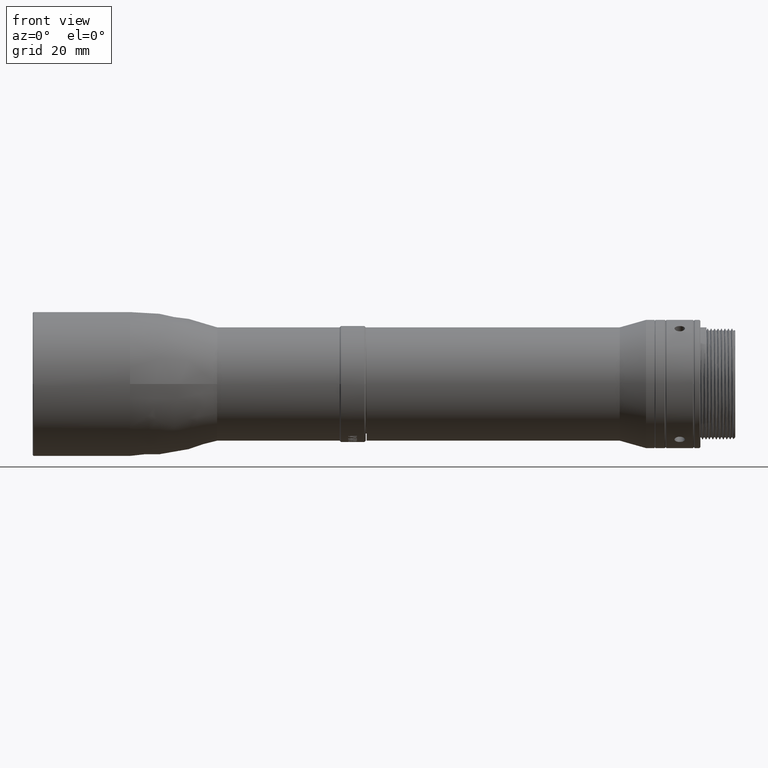
[diagram: clean part render]
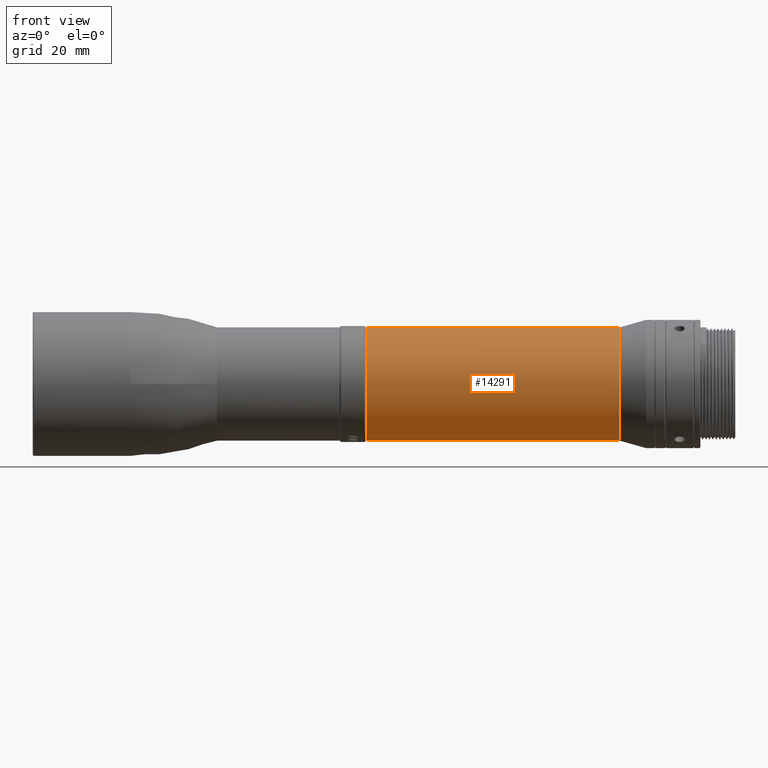
[diagram: same view with one face highlighted and labeled with its STEP entity id]
A machine part, front view. The second image highlights one B-rep face of the part: STEP entity #14291.
In plain terms, the highlighted face is a freeform B-spline surface patch.
Its self-contained STEP definition (entity closure, byte-faithful):
#617 = CARTESIAN_POINT ( 'NONE',  ( 92.39000000000000057, -2.388061258771915706E-15, -13.00000000000000178 ) ) ;
#1332 =( BOUNDED_SURFACE ( )  B_SPLINE_SURFACE ( 1, 3, ( 
 ( #12460, #20420, #2575, #6869 ),
 ( #22501, #4645, #14822, #20556 ) ),
 .UNSPECIFIED., .F., .F., .F. ) 
 B_SPLINE_SURFACE_WITH_KNOTS ( ( 2, 2 ),
 ( 4, 4 ),
 ( 0.000000000000000000, 1.000000000000000000 ),
 ( 0.000000000000000000, 1.000000000000000000 ),
 .UNSPECIFIED. ) 
 GEOMETRIC_REPRESENTATION_ITEM ( )  RATIONAL_B_SPLINE_SURFACE ( (
 ( 1.000000000000000000, 0.3333333334700690487, 0.3333333334700690487, 1.000000000000000000),
 ( 1.000000000000000000, 0.3333333334700690487, 0.3333333334700690487, 1.000000000000000000) ) ) 
 REPRESENTATION_ITEM ( '' )  SURFACE ( )  );
#2575 = CARTESIAN_POINT ( 'NONE',  ( 34.29999999999999716, -25.99999998933461143, -12.99999999999999467 ) ) ;
#2769 = LINE ( 'NONE', #15011, #22533 ) ;
#3167 = CARTESIAN_POINT ( 'NONE',  ( 34.29999999999997584, -4.977176649126339839E-09, 13.00000000000000178 ) ) ;
#4645 = CARTESIAN_POINT ( 'NONE',  ( 92.39000000000000057, -25.99999999466730216, 12.99999998933462209 ) ) ;
#5715 = EDGE_CURVE ( 'NONE', #5880, #9061, #19440, .T. ) ;
#5880 = VERTEX_POINT ( 'NONE', #9741 ) ;
#6119 = CARTESIAN_POINT ( 'NONE',  ( 34.29999999999996874, -25.99999998933461498, -12.99999999999999289 ) ) ;
#6468 = CARTESIAN_POINT ( 'NONE',  ( 92.39000000000000057, -25.99999998933461143, -12.99999999999999467 ) ) ;
#6869 = CARTESIAN_POINT ( 'NONE',  ( 34.29999999999999716, -3.184081678362554275E-15, -13.00000000000000178 ) ) ;
#8277 = CARTESIAN_POINT ( 'NONE',  ( 92.39000000000000057, -25.99999999466729506, 12.99999998933462031 ) ) ;
#8670 = CARTESIAN_POINT ( 'NONE',  ( 63.34499999999999886, -5.332689141398610227E-09, 13.00000000000000178 ) ) ;
#8734 = ORIENTED_EDGE ( 'NONE', *, *, #5715, .F. ) ;
#8835 = VECTOR ( 'NONE', #24092, 1000.000000000000000 ) ;
#8940 = LINE ( 'NONE', #8670, #8835 ) ;
#9061 = VERTEX_POINT ( 'NONE', #3167 ) ;
#9188 = EDGE_CURVE ( 'NONE', #9704, #9061, #8940, .T. ) ;
#9704 = VERTEX_POINT ( 'NONE', #11848 ) ;
#9741 = CARTESIAN_POINT ( 'NONE',  ( 34.29999999999999716, -1.556416484411564231E-10, -13.00000000000000178 ) ) ;
#10029 = CARTESIAN_POINT ( 'NONE',  ( 34.29999999999999716, -1.556416484411564231E-10, -13.00000000000000178 ) ) ;
#11694 = CARTESIAN_POINT ( 'NONE',  ( 92.39000000000000057, -2.388061258771915706E-15, -13.00000000000000178 ) ) ;
#11848 = CARTESIAN_POINT ( 'NONE',  ( 92.38999999999997215, -5.332689141398607745E-09, 12.99999999999999467 ) ) ;
#12225 = VERTEX_POINT ( 'NONE', #11694 ) ;
#12460 = CARTESIAN_POINT ( 'NONE',  ( 34.29999999999999716, -5.332689141398610227E-09, 13.00000000000000178 ) ) ;
#12966 =( BOUNDED_CURVE ( )  B_SPLINE_CURVE ( 3, ( #16115, #8277, #6468, #617 ),
 .UNSPECIFIED., .F., .T. ) 
 B_SPLINE_CURVE_WITH_KNOTS ( ( 4, 4 ),
 ( 0.000000000000000000, 1.000000000000000000 ),
 .UNSPECIFIED. ) 
 CURVE ( )  GEOMETRIC_REPRESENTATION_ITEM ( )  RATIONAL_B_SPLINE_CURVE ( ( 1.000000000000000000, 0.3333333334700690487, 0.3333333334700690487, 1.000000000000000000 ) ) 
 REPRESENTATION_ITEM ( '' )  );
#13803 = ORIENTED_EDGE ( 'NONE', *, *, #17503, .F. ) ;
#14291 = ADVANCED_FACE ( 'NONE', ( #14549 ), #1332, .F. ) ;
#14549 = FACE_OUTER_BOUND ( 'NONE', #16339, .T. ) ;
#14703 = ORIENTED_EDGE ( 'NONE', *, *, #9188, .T. ) ;
#14822 = CARTESIAN_POINT ( 'NONE',  ( 92.39000000000000057, -25.99999998933461143, -12.99999999999999467 ) ) ;
#15011 = CARTESIAN_POINT ( 'NONE',  ( 63.34499999999999886, 0.000000000000000000, -13.00000000000000178 ) ) ;
#16115 = CARTESIAN_POINT ( 'NONE',  ( 92.38999999999997215, -5.332689141398607745E-09, 12.99999999999999467 ) ) ;
#16339 = EDGE_LOOP ( 'NONE', ( #18752, #13803, #14703, #8734 ) ) ;
#16554 = CARTESIAN_POINT ( 'NONE',  ( 34.29999999999997584, -4.977176649126339839E-09, 13.00000000000000178 ) ) ;
#16969 = DIRECTION ( 'NONE',  ( 1.000000000000000000, 0.000000000000000000, 0.000000000000000000 ) ) ;
#17503 = EDGE_CURVE ( 'NONE', #9704, #12225, #12966, .T. ) ;
#18752 = ORIENTED_EDGE ( 'NONE', *, *, #24785, .T. ) ;
#19440 =( BOUNDED_CURVE ( )  B_SPLINE_CURVE ( 3, ( #10029, #6119, #20068, #16554 ),
 .UNSPECIFIED., .F., .T. ) 
 B_SPLINE_CURVE_WITH_KNOTS ( ( 4, 4 ),
 ( 0.000000000000000000, 0.04063560039454325312 ),
 .UNSPECIFIED. ) 
 CURVE ( )  GEOMETRIC_REPRESENTATION_ITEM ( )  RATIONAL_B_SPLINE_CURVE ( ( 1.000000000000000000, 0.3333333334700691042, 0.3333333334700691042, 1.000000000000000000 ) ) 
 REPRESENTATION_ITEM ( '' )  );
#20068 = CARTESIAN_POINT ( 'NONE',  ( 34.29999999999996874, -25.99999999466729861, 12.99999998933461853 ) ) ;
#20420 = CARTESIAN_POINT ( 'NONE',  ( 34.29999999999999716, -25.99999999466730216, 12.99999998933462209 ) ) ;
#20556 = CARTESIAN_POINT ( 'NONE',  ( 92.39000000000000057, -3.184081678362554275E-15, -13.00000000000000178 ) ) ;
#22501 = CARTESIAN_POINT ( 'NONE',  ( 92.39000000000000057, -5.332689141398610227E-09, 13.00000000000000178 ) ) ;
#22533 = VECTOR ( 'NONE', #16969, 1000.000000000000000 ) ;
#24092 = DIRECTION ( 'NONE',  ( -1.000000000000000000, -0.000000000000000000, -0.000000000000000000 ) ) ;
#24785 = EDGE_CURVE ( 'NONE', #5880, #12225, #2769, .T. ) ;